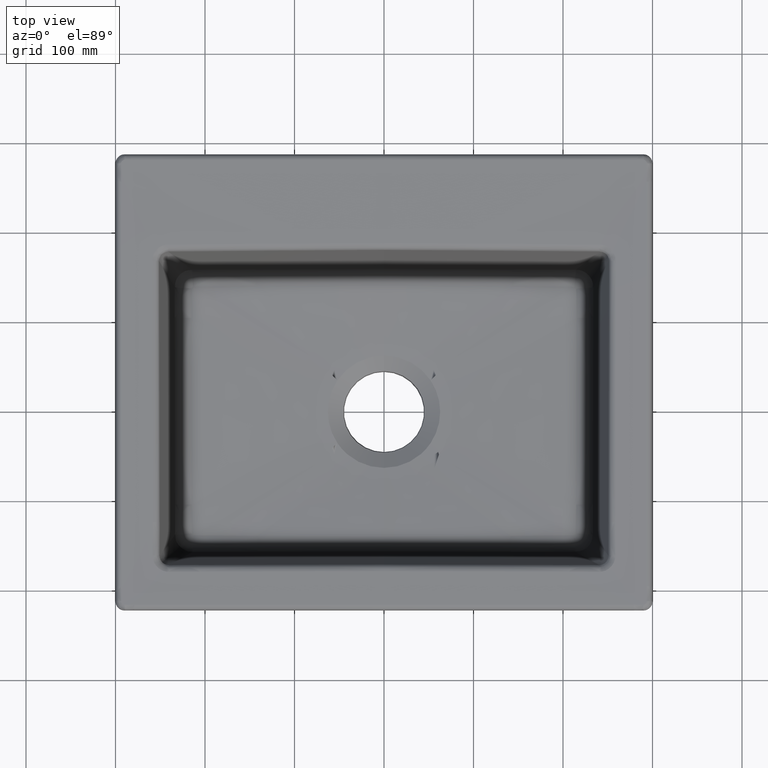
[diagram: clean part render]
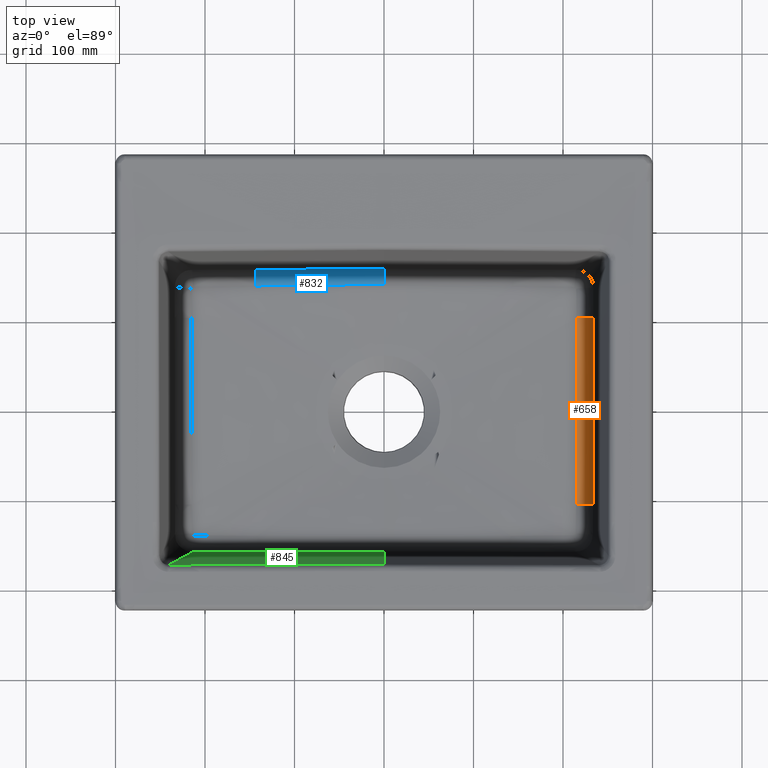
[diagram: same view with three faces highlighted in distinct colors, each labeled with its STEP entity id]
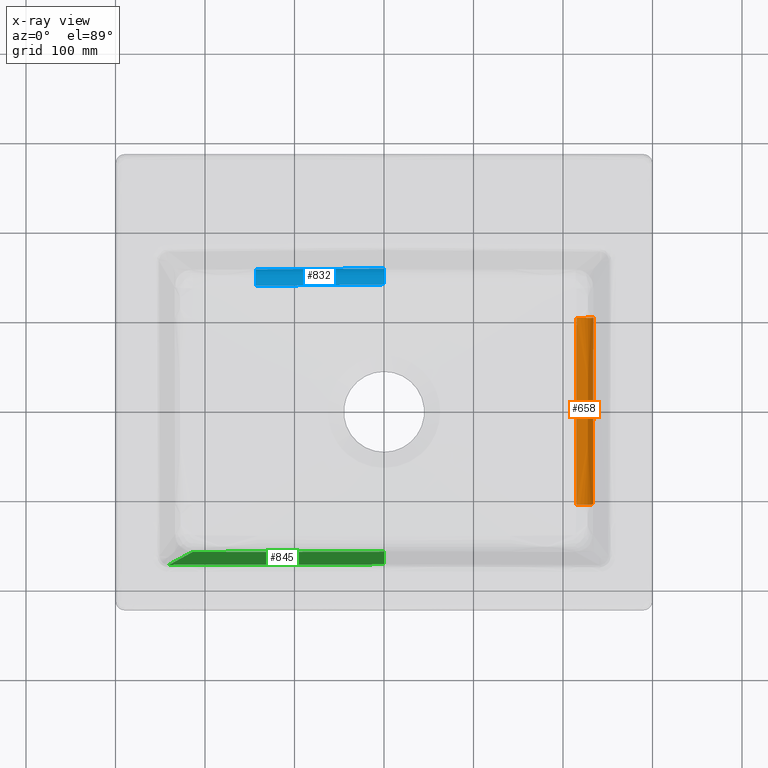
[diagram: x-ray of the same camera — body ghosted, the three highlighted faces saturated]
A machine part, top view with three faces highlighted in distinct colors.
The next image is the same camera in x-ray (body ghosted, the three faces saturated) — at least one of them is partly hidden behind the body in this view.
Their STEP definitions:

[orange] entity #658 — the highlighted face is a freeform B-spline surface patch.
#92=(
BOUNDED_SURFACE()
B_SPLINE_SURFACE(2,3,((#7959,#7960,#7961,#7962),(#7963,#7964,#7965,#7966),
(#7967,#7968,#7969,#7970)),.UNSPECIFIED.,.F.,.F.,.F.)
B_SPLINE_SURFACE_WITH_KNOTS((3,3),(4,4),(0.,1.),(0.,1.),.UNSPECIFIED.)
GEOMETRIC_REPRESENTATION_ITEM()
RATIONAL_B_SPLINE_SURFACE(((1.,1.,1.,1.),(0.76095780598723,0.761272329000636,
0.761279815173615,0.760974056195751),(1.,1.,1.,1.)))
REPRESENTATION_ITEM('')
SURFACE()
);
#287=(
BOUNDED_CURVE()
B_SPLINE_CURVE(2,(#7931,#7932,#7933),.UNSPECIFIED.,.F.,.F.)
B_SPLINE_CURVE_WITH_KNOTS((3,3),(0.,1.),.UNSPECIFIED.)
CURVE()
GEOMETRIC_REPRESENTATION_ITEM()
RATIONAL_B_SPLINE_CURVE((1.,0.760974082297114,0.999999999963303))
REPRESENTATION_ITEM('')
);
#288=(
BOUNDED_CURVE()
B_SPLINE_CURVE(2,(#7956,#7957,#7958),.UNSPECIFIED.,.F.,.F.)
B_SPLINE_CURVE_WITH_KNOTS((3,3),(0.,1.),.UNSPECIFIED.)
CURVE()
GEOMETRIC_REPRESENTATION_ITEM()
RATIONAL_B_SPLINE_CURVE((0.999999999999996,0.760957832296535,1.))
REPRESENTATION_ITEM('')
);
#658=ADVANCED_FACE('',(#1117),#92,.T.);
#1117=FACE_OUTER_BOUND('',#1481,.T.);
#1481=EDGE_LOOP('',(#1938,#1939,#1940,#1941));
#1938=ORIENTED_EDGE('',*,*,#4071,.F.);
#1939=ORIENTED_EDGE('',*,*,#4096,.F.);
#1940=ORIENTED_EDGE('',*,*,#4098,.F.);
#1941=ORIENTED_EDGE('',*,*,#4099,.F.);
#3573=VERTEX_POINT('',#7052);
#3576=VERTEX_POINT('',#7291);
#3592=VERTEX_POINT('',#7934);
#3593=VERTEX_POINT('',#7955);
#4071=EDGE_CURVE('',#3573,#3576,#4912,.T.);
#4096=EDGE_CURVE('',#3592,#3573,#287,.T.);
#4098=EDGE_CURVE('',#3593,#3592,#4935,.T.);
#4099=EDGE_CURVE('',#3576,#3593,#288,.T.);
#4912=B_SPLINE_CURVE_WITH_KNOTS('',3,(#7292,#7293,#7294,#7295),
 .UNSPECIFIED.,.F.,.F.,(4,4),(0.,1.),.UNSPECIFIED.);
#4935=B_SPLINE_CURVE_WITH_KNOTS('',3,(#7951,#7952,#7953,#7954),
 .UNSPECIFIED.,.F.,.F.,(4,4),(0.,1.),.UNSPECIFIED.);
#7052=CARTESIAN_POINT('',(214.826871947045,-103.986037950273,-190.806258756227));
#7291=CARTESIAN_POINT('',(215.188582062088,104.582539396406,-190.805706741528));
#7292=CARTESIAN_POINT('',(214.826871909135,-103.986037863018,-190.806257968773));
#7293=CARTESIAN_POINT('',(215.890259103312,-36.084580862794,-190.794838122132));
#7294=CARTESIAN_POINT('',(216.042019235341,33.8415796902036,-190.794654162406));
#7295=CARTESIAN_POINT('',(215.188582025073,104.582539392767,-190.805706089597));
#7931=CARTESIAN_POINT('',(233.59143881268,-104.020251119664,-172.832980508934));
#7932=CARTESIAN_POINT('',(231.850691474105,-104.017077245029,-189.837951783834));
#7933=CARTESIAN_POINT('',(214.826871998408,-103.986038008245,-190.806259542938));
#7934=CARTESIAN_POINT('',(233.591438812892,-104.020251003611,-172.832980508934));
#7951=CARTESIAN_POINT('',(233.953923397895,104.551527959409,-172.832980508934));
#7952=CARTESIAN_POINT('',(233.839028750636,35.0275818608335,-172.832980508934));
#7953=CARTESIAN_POINT('',(233.718200588731,-34.4963254162663,-172.832980508934));
#7954=CARTESIAN_POINT('',(233.591438812945,-104.020250974598,-172.832980508934));
#7955=CARTESIAN_POINT('',(233.953923397894,104.551527959084,-172.832980508934));
#7956=CARTESIAN_POINT('',(215.188582099183,104.582539393457,-190.805707393457));
#7957=CARTESIAN_POINT('',(232.21331056744,104.554404480498,-189.838058707888));
#7958=CARTESIAN_POINT('',(233.953923397895,104.551527959409,-172.832980508934));
#7959=CARTESIAN_POINT('',(233.953923397894,104.551527958596,-172.832980508934));
#7960=CARTESIAN_POINT('',(233.839028750426,35.027581860292,-172.832980510977));
#7961=CARTESIAN_POINT('',(233.718200589169,-34.4963254165379,-172.832980504653));
#7962=CARTESIAN_POINT('',(233.591438812945,-104.020250974598,-172.832980508934));
#7963=CARTESIAN_POINT('',(232.213310559499,104.554404479699,-189.838058785456));
#7964=CARTESIAN_POINT('',(232.132662686222,35.0305006285038,-189.831584835211));
#7965=CARTESIAN_POINT('',(232.011792211409,-34.4933130022678,-189.831522936889));
#7966=CARTESIAN_POINT('',(231.850691495484,-104.017077100002,-189.83795157826));
#7967=CARTESIAN_POINT('',(215.188582025073,104.582539392767,-190.805706089597));
#7968=CARTESIAN_POINT('',(216.027345011677,35.0579196381808,-190.79484419146));
#7969=CARTESIAN_POINT('',(215.915626566777,-34.4647681958134,-190.794565698019));
#7970=CARTESIAN_POINT('',(214.826871909135,-103.986037863018,-190.806257968773));

[blue] entity #832 — the highlighted face is a freeform B-spline surface patch.
#188=(
BOUNDED_SURFACE()
B_SPLINE_SURFACE(2,3,((#15241,#15242,#15243,#15244,#15245,#15246),(#15247,
#15248,#15249,#15250,#15251,#15252),(#15253,#15254,#15255,#15256,#15257,
#15258)),.UNSPECIFIED.,.F.,.F.,.F.)
B_SPLINE_SURFACE_WITH_KNOTS((3,3),(4,2,4),(0.,1.),(0.,0.5,1.),
 .UNSPECIFIED.)
GEOMETRIC_REPRESENTATION_ITEM()
RATIONAL_B_SPLINE_SURFACE(((1.,1.,1.,1.,1.,1.),(0.770579257837022,0.774549266172801,
0.777714033923633,0.778650111626214,0.776423595954616,0.773404626129239),
(1.,1.,1.,1.,1.,1.)))
REPRESENTATION_ITEM('')
SURFACE()
);
#347=(
BOUNDED_CURVE()
B_SPLINE_CURVE(2,(#15220,#15221,#15222),.UNSPECIFIED.,.F.,.F.)
B_SPLINE_CURVE_WITH_KNOTS((3,3),(0.,1.),.UNSPECIFIED.)
CURVE()
GEOMETRIC_REPRESENTATION_ITEM()
RATIONAL_B_SPLINE_CURVE((0.99999999994704,0.773404309371826,1.))
REPRESENTATION_ITEM('')
);
#832=ADVANCED_FACE('',(#1291),#188,.T.);
#1291=FACE_OUTER_BOUND('',#1655,.T.);
#1655=EDGE_LOOP('',(#2751,#2752,#2753,#2754));
#2751=ORIENTED_EDGE('',*,*,#4036,.F.);
#2752=ORIENTED_EDGE('',*,*,#4508,.F.);
#2753=ORIENTED_EDGE('',*,*,#4487,.F.);
#2754=ORIENTED_EDGE('',*,*,#4088,.F.);
#3547=VERTEX_POINT('',#6322);
#3548=VERTEX_POINT('',#6327);
#3569=VERTEX_POINT('',#6609);
#3810=VERTEX_POINT('',#14441);
#4036=EDGE_CURVE('',#3547,#3548,#4887,.T.);
#4088=EDGE_CURVE('',#3548,#3569,#4926,.T.);
#4487=EDGE_CURVE('',#3569,#3810,#5189,.T.);
#4508=EDGE_CURVE('',#3810,#3547,#347,.T.);
#4887=B_SPLINE_CURVE_WITH_KNOTS('',3,(#6323,#6324,#6325,#6326),
 .UNSPECIFIED.,.F.,.F.,(4,4),(0.,1.),.UNSPECIFIED.);
#4926=B_SPLINE_CURVE_WITH_KNOTS('',3,(#7612,#7613,#7614,#7615,#7616,#7617,
#7618,#7619,#7620,#7621),.UNSPECIFIED.,.F.,.F.,(4,2,2,2,4),(0.,0.25,0.5,
0.75,1.),.UNSPECIFIED.);
#5189=B_SPLINE_CURVE_WITH_KNOTS('',3,(#14416,#14417,#14418,#14419,#14420,
#14421,#14422,#14423,#14424,#14425,#14426,#14427,#14428,#14429,#14430,#14431,
#14432,#14433,#14434,#14435,#14436,#14437,#14438,#14439,#14440),
 .UNSPECIFIED.,.F.,.F.,(4,2,2,2,1,1,1,2,2,2,1,1,2,2,4),(0.,0.250000000000006,
0.375000000000009,0.437500000000011,0.468750000000012,0.484375000000012,
0.492187500000012,0.496093750000012,0.500000000000012,0.625000000000008,
0.687500000000006,0.718750000000005,0.734375000000005,0.750000000000004,
1.),.UNSPECIFIED.);
#6322=CARTESIAN_POINT('',(-143.30220207373,158.605494643305,-172.832980508934));
#6323=CARTESIAN_POINT('',(-143.302202150938,158.60549464293,-172.832980508934));
#6324=CARTESIAN_POINT('',(-95.534784396136,158.837621804569,-172.832980508934));
#6325=CARTESIAN_POINT('',(-47.7673894598429,159.073080649722,-172.832980508934));
#6326=CARTESIAN_POINT('',(5.55111512312578E-14,159.311871178297,-172.832980508934));
#6327=CARTESIAN_POINT('',(0.,159.311871181196,-172.832980482082));
#6609=CARTESIAN_POINT('',(0.,142.122841873135,-191.454663972532));
#7612=CARTESIAN_POINT('',(-8.94737843042119E-14,159.311871176864,-172.832980522203));
#7613=CARTESIAN_POINT('',(5.08929900261479E-12,159.120360828457,-174.606495249541));
#7614=CARTESIAN_POINT('',(0.0010492273517893,158.705687665287,-176.550097085352));
#7615=CARTESIAN_POINT('',(0.00310719012471781,157.191891095182,-180.541424057748));
#7616=CARTESIAN_POINT('',(0.00405789041367031,156.085059341083,-182.587346420045));
#7617=CARTESIAN_POINT('',(0.00433364674546788,153.090840095115,-186.311923097954));
#7618=CARTESIAN_POINT('',(0.00361056800118596,151.199887727326,-187.978649635612));
#7619=CARTESIAN_POINT('',(0.00141869765007878,146.901407889014,-190.429497968564));
#7620=CARTESIAN_POINT('',(5.04210030847308E-12,144.503753653315,-191.203300641863));
#7621=CARTESIAN_POINT('',(1.02402895213969E-13,142.122841023927,-191.454663889403));
#14416=CARTESIAN_POINT('',(4.99531971535449E-6,142.1228423478,-191.454664018872));
#14417=CARTESIAN_POINT('',(-11.1607451410248,142.066849211516,-191.453910745156));
#14418=CARTESIAN_POINT('',(-22.6923189287006,141.992224557665,-191.450480440048));
#14419=CARTESIAN_POINT('',(-40.5700756643447,141.843279270168,-191.441319435298));
#14420=CARTESIAN_POINT('',(-46.62606651204,141.787501546674,-191.4375965092));
#14421=CARTESIAN_POINT('',(-55.8582852886296,141.693964013195,-191.431008233281));
#14422=CARTESIAN_POINT('',(-58.9603994473502,141.661149301029,-191.428644826846));
#14423=CARTESIAN_POINT('',(-63.6510454040084,141.609470496229,-191.424848745501));
#14424=CARTESIAN_POINT('',(-66.0057371929953,141.5830173086,-191.422887961905));
#14425=CARTESIAN_POINT('',(-68.7693648389795,141.551084669164,-191.420490580927));
#14426=CARTESIAN_POINT('',(-70.1553120653258,141.534851471169,-191.419264440409));
#14427=CARTESIAN_POINT('',(-70.7501764231726,141.527837288474,-191.418733069467));
#14428=CARTESIAN_POINT('',(-71.1469499060913,141.523148489201,-191.418377515028));
#14429=CARTESIAN_POINT('',(-71.4012819764392,141.520134884477,-191.418148721321));
#14430=CARTESIAN_POINT('',(-76.1116144782859,141.464226114187,-191.413900913518));
#14431=CARTESIAN_POINT('',(-80.9702746274153,141.403939301986,-191.40920858125));
#14432=CARTESIAN_POINT('',(-88.697447908214,141.301862484033,-191.401310213979));
#14433=CARTESIAN_POINT('',(-92.6708332352068,141.247914236807,-191.397146063126));
#14434=CARTESIAN_POINT('',(-97.4991883083796,141.179357785682,-191.391911694499));
#14435=CARTESIAN_POINT('',(-99.6098491150586,141.148719475869,-191.389587780953));
#14436=CARTESIAN_POINT('',(-101.026155910323,141.128008794981,-191.388020591321));
#14437=CARTESIAN_POINT('',(-101.773039001141,141.11700448667,-191.387189905899));
#14438=CARTESIAN_POINT('',(-113.387892855833,140.944676121564,-191.374212528979));
#14439=CARTESIAN_POINT('',(-126.96294043787,140.72588603267,-191.358039014628));
#14440=CARTESIAN_POINT('',(-143.213835563967,140.421346941131,-191.337905987733));
#14441=CARTESIAN_POINT('',(-143.213835688709,140.421346586067,-191.337902037196));
#15220=CARTESIAN_POINT('',(-143.213835750673,140.421346234305,-191.337898085537));
#15221=CARTESIAN_POINT('',(-143.293180145774,156.748935132174,-189.879156887511));
#15222=CARTESIAN_POINT('',(-143.302202150938,158.60549464293,-172.832980508934));
#15241=CARTESIAN_POINT('',(144.39248503849,141.858572359508,-191.351876501699));
#15242=CARTESIAN_POINT('',(96.4546534566342,142.271581387465,-191.408277547228));
#15243=CARTESIAN_POINT('',(48.5187043194174,142.363774016834,-191.457537488227));
#15244=CARTESIAN_POINT('',(-47.3499798171474,141.887743949372,-191.451864571112));
#15245=CARTESIAN_POINT('',(-95.2825978588512,141.31957042692,-191.397287386923));
#15246=CARTESIAN_POINT('',(-143.213835563967,140.421346941131,-191.337905987732));
#15247=CARTESIAN_POINT('',(144.307804243236,158.335057079997,-189.884099894263));
#15248=CARTESIAN_POINT('',(96.3745012874236,158.027328990376,-189.861755368439));
#15249=CARTESIAN_POINT('',(48.4410985310628,157.743150707819,-189.834648465965));
#15250=CARTESIAN_POINT('',(-47.4258902558484,157.214600830552,-189.83288064994));
#15251=CARTESIAN_POINT('',(-95.3594758746766,156.970145221855,-189.85816081436));
#15252=CARTESIAN_POINT('',(-143.293179960173,156.748936065845,-189.879148322893));
#15253=CARTESIAN_POINT('',(144.299024427136,160.043360661574,-172.832980508934));
#15254=CARTESIAN_POINT('',(96.3654859217954,159.797006525426,-172.832980508992));
#15255=CARTESIAN_POINT('',(48.4319594840076,159.554007289559,-172.832980505113));
#15256=CARTESIAN_POINT('',(-47.4351042944348,159.074718616106,-172.832980512756));
#15257=CARTESIAN_POINT('',(-95.3686416399732,158.838429180875,-172.832980502312));
#15258=CARTESIAN_POINT('',(-143.302201960805,158.605494643854,-172.832980508934));

[green] entity #845 — the highlighted face is a freeform B-spline surface patch.
#356=(
BOUNDED_CURVE()
B_SPLINE_CURVE(3,(#16062,#16063,#16064,#16065),.UNSPECIFIED.,.F.,.F.)
B_SPLINE_CURVE_WITH_KNOTS((4,4),(0.,1.),.UNSPECIFIED.)
CURVE()
GEOMETRIC_REPRESENTATION_ITEM()
RATIONAL_B_SPLINE_CURVE((1.00000000000002,1.00000000000002,1.00000000000002,
1.00000000000002))
REPRESENTATION_ITEM('')
);
#845=ADVANCED_FACE('',(#1304),#1057,.T.);
#1057=B_SPLINE_SURFACE_WITH_KNOTS('',3,1,((#16076,#16077),(#16078,#16079),
(#16080,#16081),(#16082,#16083)),.UNSPECIFIED.,.F.,.F.,.F.,(4,4),(2,2),
(0.,1.),(0.,1.),.UNSPECIFIED.);
#1304=FACE_OUTER_BOUND('',#1668,.T.);
#1668=EDGE_LOOP('',(#2804,#2805,#2806,#2807,#2808,#2809));
#2804=ORIENTED_EDGE('',*,*,#4510,.T.);
#2805=ORIENTED_EDGE('',*,*,#4512,.T.);
#2806=ORIENTED_EDGE('',*,*,#4532,.F.);
#2807=ORIENTED_EDGE('',*,*,#4533,.T.);
#2808=ORIENTED_EDGE('',*,*,#4534,.T.);
#2809=ORIENTED_EDGE('',*,*,#4118,.F.);
#3588=VERTEX_POINT('',#7650);
#3604=VERTEX_POINT('',#8510);
#3823=VERTEX_POINT('',#15262);
#3824=VERTEX_POINT('',#15373);
#3834=VERTEX_POINT('',#16066);
#3835=VERTEX_POINT('',#16071);
#4118=EDGE_CURVE('',#3588,#3604,#4944,.T.);
#4510=EDGE_CURVE('',#3588,#3823,#5203,.T.);
#4512=EDGE_CURVE('',#3823,#3824,#5205,.T.);
#4532=EDGE_CURVE('',#3834,#3824,#356,.T.);
#4533=EDGE_CURVE('',#3834,#3835,#5218,.T.);
#4534=EDGE_CURVE('',#3835,#3604,#5219,.T.);
#4944=B_SPLINE_CURVE_WITH_KNOTS('',3,(#8493,#8494,#8495,#8496,#8497,#8498,
#8499,#8500,#8501,#8502,#8503,#8504,#8505,#8506,#8507,#8508,#8509),
 .UNSPECIFIED.,.F.,.F.,(4,2,2,2,1,1,1,2,2,4),(0.,0.249999999999992,0.374999999999988,
0.437499999999987,0.468749999999986,0.484374999999985,0.492187499999985,
0.496093749999985,0.499999999999985,1.),.UNSPECIFIED.);
#5203=B_SPLINE_CURVE_WITH_KNOTS('',3,(#15263,#15264,#15265,#15266),
 .UNSPECIFIED.,.F.,.F.,(4,4),(0.,1.),.UNSPECIFIED.);
#5205=B_SPLINE_CURVE_WITH_KNOTS('',3,(#15374,#15375,#15376,#15377),
 .UNSPECIFIED.,.F.,.F.,(4,4),(0.,1.),.UNSPECIFIED.);
#5218=B_SPLINE_CURVE_WITH_KNOTS('',3,(#16067,#16068,#16069,#16070),
 .UNSPECIFIED.,.F.,.F.,(4,4),(0.,1.),.UNSPECIFIED.);
#5219=B_SPLINE_CURVE_WITH_KNOTS('',3,(#16072,#16073,#16074,#16075),
 .UNSPECIFIED.,.F.,.F.,(4,4),(0.,1.),.UNSPECIFIED.);
#7650=CARTESIAN_POINT('',(0.,-156.902292732248,-172.832980512205));
#8493=CARTESIAN_POINT('',(-4.80358114396395E-9,-156.902292732572,-172.832980508935));
#8494=CARTESIAN_POINT('',(-4.8035984911557E-9,-158.1813602094,-160.550977799487));
#8495=CARTESIAN_POINT('',(-0.000144412634330016,-159.529989296871,-147.569246444421));
#8496=CARTESIAN_POINT('',(-0.000243770760681439,-161.667378793427,-126.969182745283));
#8497=CARTESIAN_POINT('',(-0.000266073217250473,-162.40166599381,-119.888019781723));
#8498=CARTESIAN_POINT('',(-0.000224587700312084,-163.525902333804,-109.042458455993));
#8499=CARTESIAN_POINT('',(-0.000235979173725658,-163.905824483659,-105.376697615848));
#8500=CARTESIAN_POINT('',(-0.000180107250846168,-164.483497613451,-99.8021957582775));
#8501=CARTESIAN_POINT('',(-0.000137160085047457,-164.77428163326,-96.9959796801541));
#8502=CARTESIAN_POINT('',(-7.06521654816477E-5,-165.116942904943,-93.6888719110019));
#8503=CARTESIAN_POINT('',(-3.7074163377917E-5,-165.289127485117,-92.0270207735903));
#8504=CARTESIAN_POINT('',(-2.30792282661829E-5,-165.363103931967,-91.3130208748062));
#8505=CARTESIAN_POINT('',(-1.3895747211039E-5,-165.412462249591,-90.8366258350057));
#8506=CARTESIAN_POINT('',(-8.58188362018973E-6,-165.441613464549,-90.5552634321902));
#8507=CARTESIAN_POINT('',(0.000458345419153407,-168.056203003148,-65.3196000028429));
#8508=CARTESIAN_POINT('',(-0.000502638985380584,-170.903972569523,-37.8214752932869));
#8509=CARTESIAN_POINT('',(-8.86667195253696E-6,-174.008819334928,-7.86526400562063));
#8510=CARTESIAN_POINT('',(-1.45906055862252E-22,-174.008819337415,-7.86526400557348));
#15262=CARTESIAN_POINT('',(-141.238740536492,-157.134868575765,-172.832980509053));
#15263=CARTESIAN_POINT('',(-1.30868926806471E-8,-156.902292732601,-172.832980508934));
#15264=CARTESIAN_POINT('',(-47.0796152016063,-156.980896748284,-172.832980508934));
#15265=CARTESIAN_POINT('',(-94.1592309878849,-157.058422088168,-172.832980508934));
#15266=CARTESIAN_POINT('',(-141.238849218476,-157.134868752252,-172.832980508934));
#15373=CARTESIAN_POINT('',(-213.937109503907,-157.251990066908,-172.832958751892));
#15374=CARTESIAN_POINT('',(-141.239573765039,-157.134869928752,-172.832980508934));
#15375=CARTESIAN_POINT('',(-165.471621079377,-157.174217293547,-172.832980508934));
#15376=CARTESIAN_POINT('',(-189.703669041264,-157.213278895809,-172.832980508934));
#15377=CARTESIAN_POINT('',(-213.935717902488,-157.252054735537,-172.832980508934));
#16062=CARTESIAN_POINT('',(-240.31445803427,-174.61905199185,-7.79141223597672));
#16063=CARTESIAN_POINT('',(-231.451601053351,-168.81200817806,-62.7901053076861));
#16064=CARTESIAN_POINT('',(-222.663819870037,-163.015513486663,-117.811609751869));
#16065=CARTESIAN_POINT('',(-213.938289839403,-157.251710353406,-172.833116632687));
#16066=CARTESIAN_POINT('',(-240.314364553533,-174.619126648213,-7.79140505446742));
#16067=CARTESIAN_POINT('',(-240.314288610595,-174.619211633307,-7.79145256533844));
#16068=CARTESIAN_POINT('',(-229.095720314996,-174.578114252067,-7.81318061664812));
#16069=CARTESIAN_POINT('',(-217.878598717054,-174.538523005685,-7.83490866795781));
#16070=CARTESIAN_POINT('',(-206.662924232954,-174.500436089333,-7.85663671926749));
#16071=CARTESIAN_POINT('',(-206.66292424774,-174.500436089067,-7.85663672225625));
#16072=CARTESIAN_POINT('',(-206.662924257598,-174.500436088699,-7.85663672606047));
#16073=CARTESIAN_POINT('',(-137.76068829608,-174.280035895731,-7.86047174863401));
#16074=CARTESIAN_POINT('',(-68.8734070170118,-174.116190534459,-7.86334750846186));
#16075=CARTESIAN_POINT('',(6.12161956032881E-6,-174.008819339207,-7.86526400554401));
#16076=CARTESIAN_POINT('',(-244.416459658825,-174.737495774609,-6.80120339566034));
#16077=CARTESIAN_POINT('',(-246.822580925988,-157.304504458136,-172.832980508934));
#16078=CARTESIAN_POINT('',(-12.5214510370514,-173.925814349834,-6.80120339566034));
#16079=CARTESIAN_POINT('',(-91.22022246041,-157.057171647866,-172.832980508934));
#16080=CARTESIAN_POINT('',(219.375828056188,-173.75446955024,-6.80120339566034));
#16081=CARTESIAN_POINT('',(64.3820942254949,-156.798055798059,-172.832980508935));
#16082=CARTESIAN_POINT('',(451.271754670499,-174.223461373989,-6.80120339566035));
#16083=CARTESIAN_POINT('',(219.984435798798,-156.527156908749,-172.832980508935));